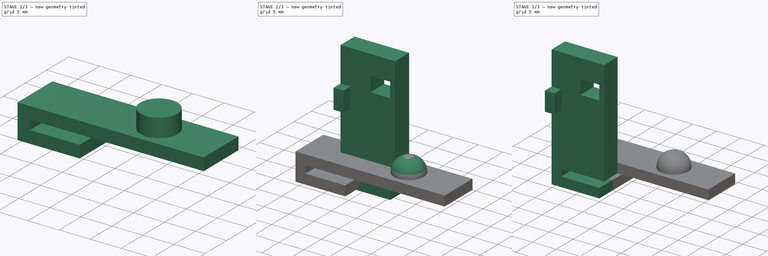
[diagram: build sequence overview — one tinted view per stage of 3, left to right]
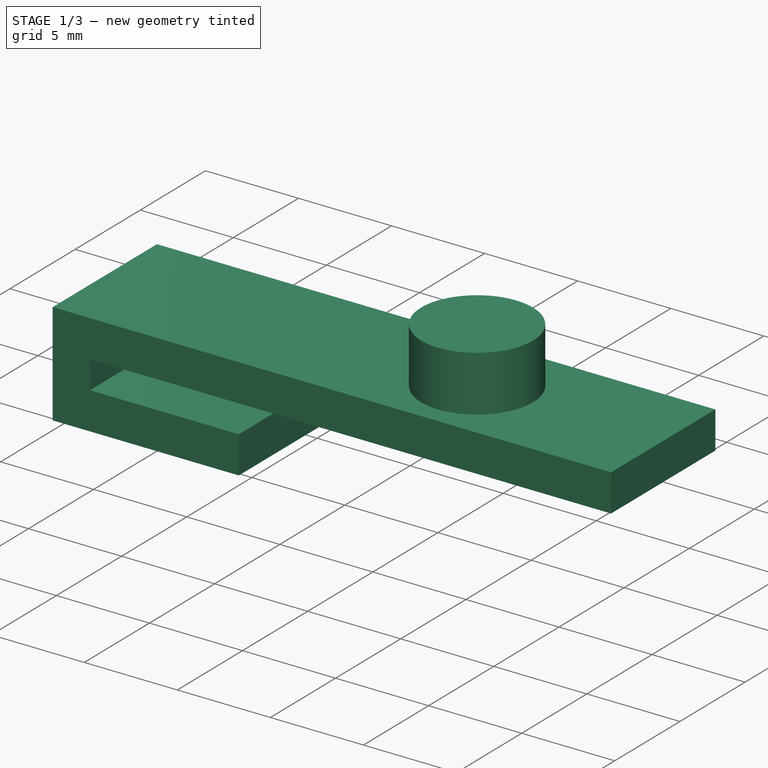
[diagram: stage 1 of 3 — iso view after this stage's code; geometry added in this stage tinted green]
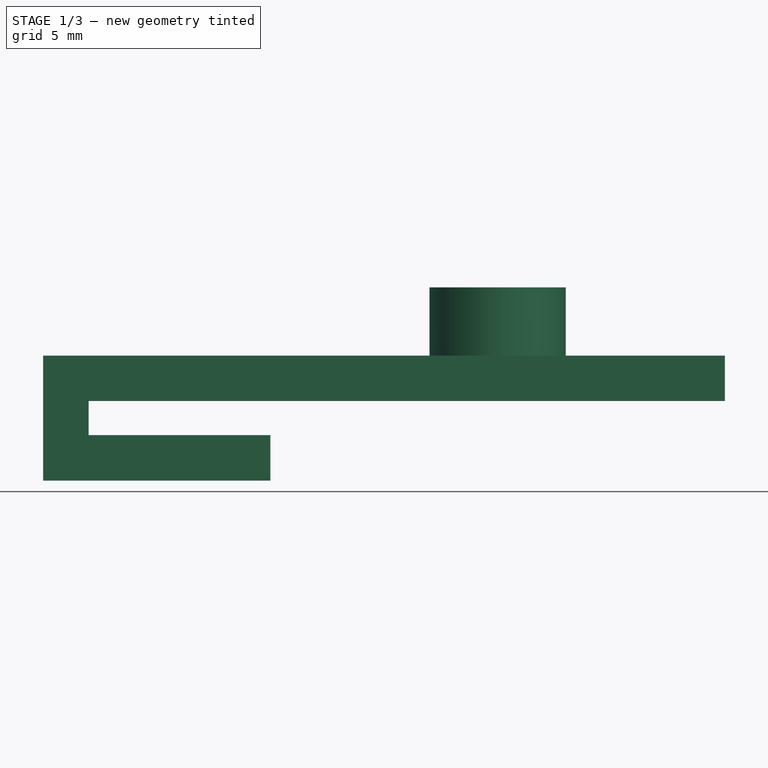
[diagram: stage 1 of 3 — front view after this stage's code; geometry added in this stage tinted green]
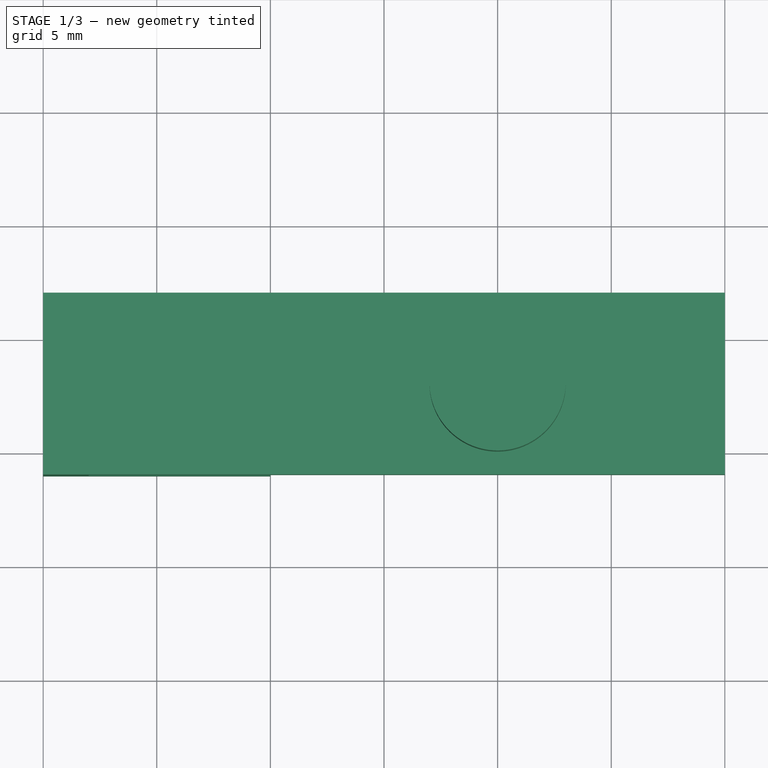
[diagram: stage 1 of 3 — top view after this stage's code; geometry added in this stage tinted green]
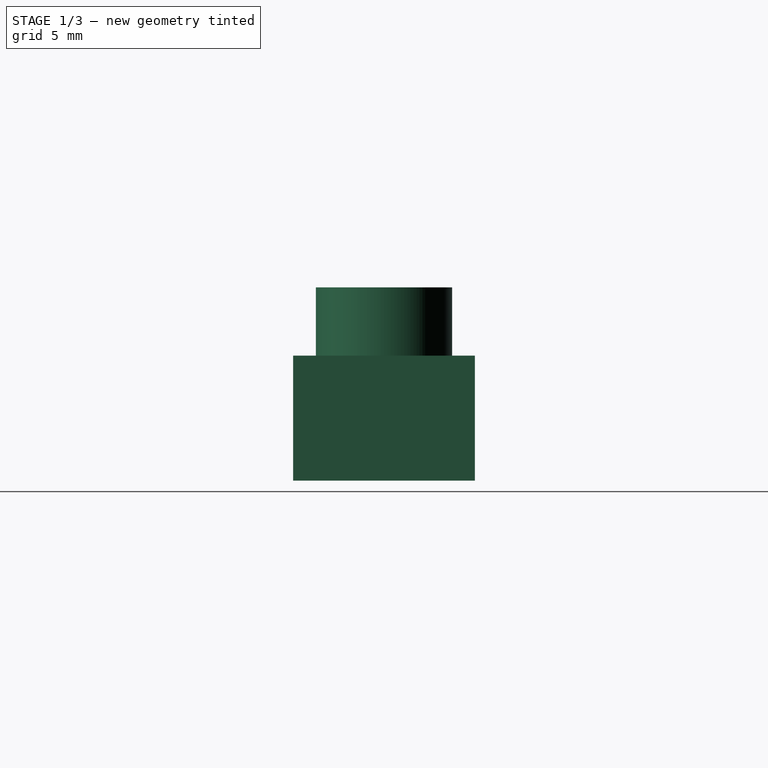
[diagram: stage 1 of 3 — right view after this stage's code; geometry added in this stage tinted green]
FCSTD DOCUMENT  (FreeCAD 0.20R29410 (Git))
Label: key_spring_mount
License: All rights reserved
LicenseURL: http://en.wikipedia.org/wiki/All_rights_reserved
objects: Sketcher::SketchObject×4, PartDesign::Pad×4, PartDesign::Body×3, PartDesign::Mirrored×1, PartDesign::Fillet×1, PartDesign::Boolean×1
note: 19 computed .brp shape members not serialized (recipe doc carries the construction recipe); baked Part::Feature solids carry a one-line shape summary decoded from their .brp

FEATURE [PartDesign::Body] Body
  Group = -> [Sketch002,Pad002,Sketch,Pad,Mirrored]
  Origin = -> Origin
  Placement = pos=(-6.25,-8,0.5) rot=(0,0,1;0rad)
  Tip = -> Mirrored
FEATURE [Sketcher::SketchObject] Sketch004
  FullyConstrained = false
  MapMode = 5
  Placement = pos=(0,2,0) rot=(1,0,0;1.5708rad)
  sketch-geometry (9):
    g0: LineSegment StartX=20 StartY=0.5 StartZ=0 EndX=20 EndY=2.5 EndZ=0
    g1: LineSegment StartX=20 StartY=2.5 StartZ=0 EndX=-10 EndY=2.5 EndZ=0
    g2: LineSegment StartX=-10 StartY=2.5 StartZ=0 EndX=-10 EndY=0.553374 EndZ=0
    g3: LineSegment StartX=-10 StartY=0.553374 StartZ=0 EndX=-10 EndY=-3 EndZ=0
    g4: LineSegment StartX=-10 StartY=-3 StartZ=0 EndX=0 EndY=-3 EndZ=0
    g5: LineSegment StartX=0 StartY=-3 StartZ=0 EndX=0 EndY=-1 EndZ=0
    g6: LineSegment StartX=0 StartY=-1 StartZ=0 EndX=-8 EndY=-1 EndZ=0
    g7: LineSegment StartX=-8 StartY=-1 StartZ=0 EndX=-8 EndY=0.5 EndZ=0
    g8: LineSegment StartX=20 StartY=0.5 StartZ=0 EndX=-8 EndY=0.5 EndZ=0
  constraints (25):
    c: Coincident(g1,g0)
    c: Vertical(g0)
    c: DistanceX(g1,g1) = 30
    c: Coincident(g8,g0)
    c: Coincident(g8,g7)
    c: Horizontal(g8)
    c: Coincident(g2,g1)
    c: Vertical(g2)
    c: Tangent(g3,g2) = -1.5708
    c: Coincident(g3,g4)
    c: Coincident(g5,g6)
    c: Coincident(g4,g5)
    c: Horizontal(g1)
    c: DistanceY(g7,g7) = 1.5
    c: Coincident(g6,g7)
    c: Horizontal(g6)
    c: DistanceY(g5,g5) = 2
    c: Horizontal(g4)
    c: Vertical(g7)
    c: DistanceY(g0,g0) = 2
    c: DistanceX(g6,g6) = 8
    c: Vertical(g5)
    c: DistanceX(g4,g4) = 10
    c: DistanceX(g1,g-1) = 10
    c: DistanceY(g-1,g1) = 2.5
FEATURE [PartDesign::Pad] Pad004
  Direction = (0,-1,2e-16)
  Length = 8
  Length2 = 100
  Placement = pos=(0,2,0) rot=(1,0,0;1.5708rad)
  Profile = -> Sketch004
  ReferenceAxis = -> Sketch004 [N_Axis]
  Type = 0
FEATURE [Sketcher::SketchObject] Sketch003
  FullyConstrained = true
  MapMode = 5
  Placement = pos=(0,2,2.5) rot=(0,0,1;3.14159rad)
  Support = -> [Pad004]
  sketch-geometry (1):
    g0: Circle CenterX=-10 CenterY=4 CenterZ=0 NormalX=0 NormalY=0 NormalZ=1 AngleXU=0 Radius=3
  constraints (3):
    c: DistanceX(g0,g-1) = 10
    c: DistanceY(g-1,g0) = 4
    c: Diameter(g0) = 6
FEATURE [PartDesign::Pad] Pad003
  BaseFeature = -> Pad004
  Direction = (0,3e-16,1)
  Length = 3
  Length2 = 10
  Placement = pos=(0,2,0) rot=(1,0,0;1.5708rad)
  Profile = -> Sketch003
  ReferenceAxis = -> Sketch003 [N_Axis]
  Type = 0
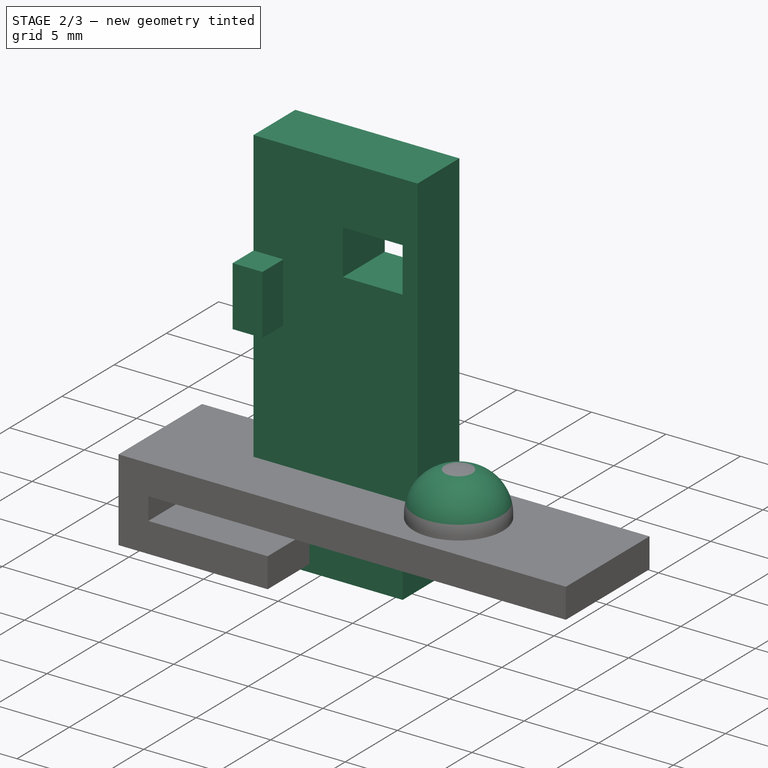
[diagram: stage 2 of 3 — iso view after this stage's code; geometry added in this stage tinted green]
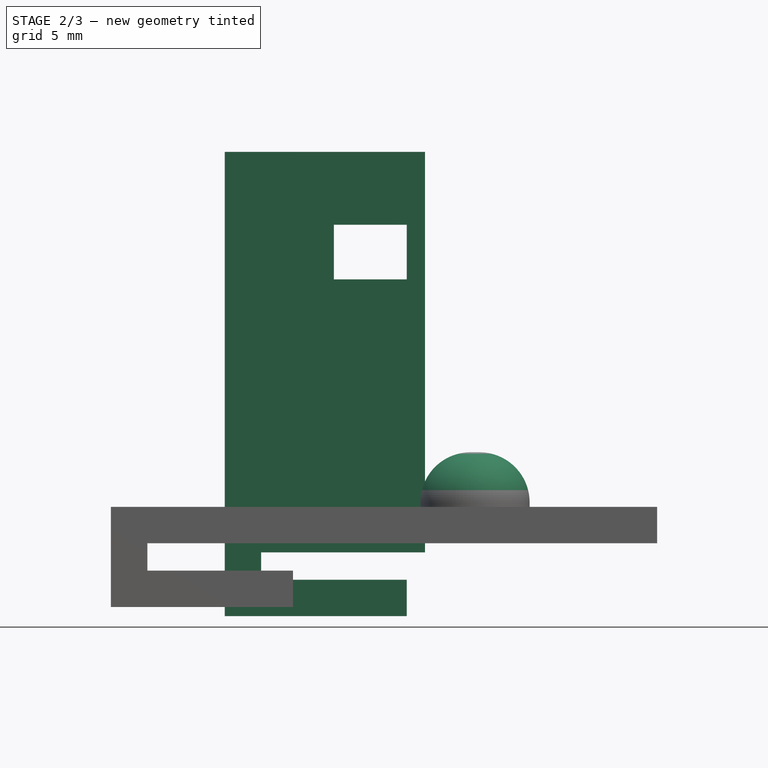
[diagram: stage 2 of 3 — front view after this stage's code; geometry added in this stage tinted green]
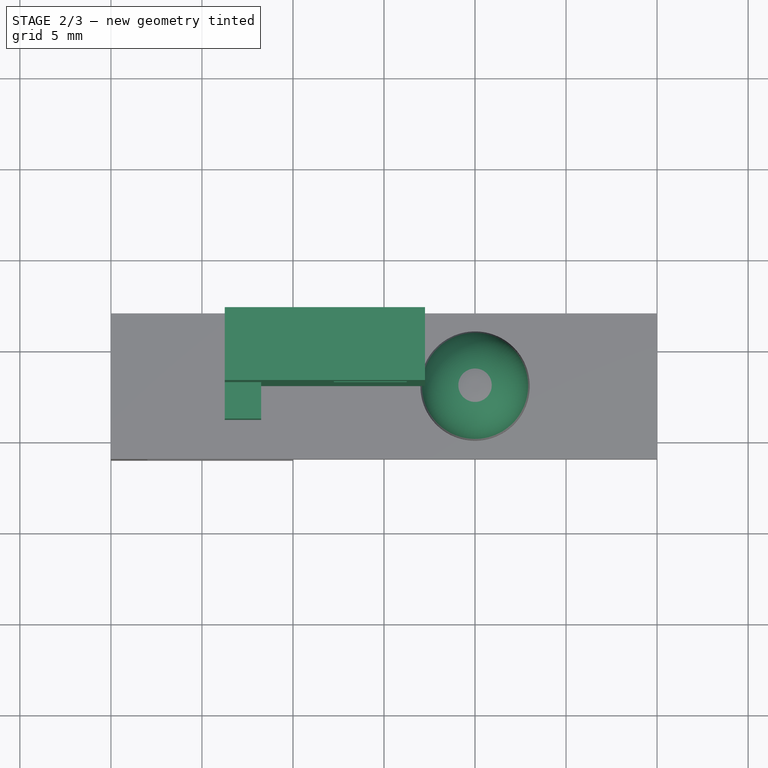
[diagram: stage 2 of 3 — top view after this stage's code; geometry added in this stage tinted green]
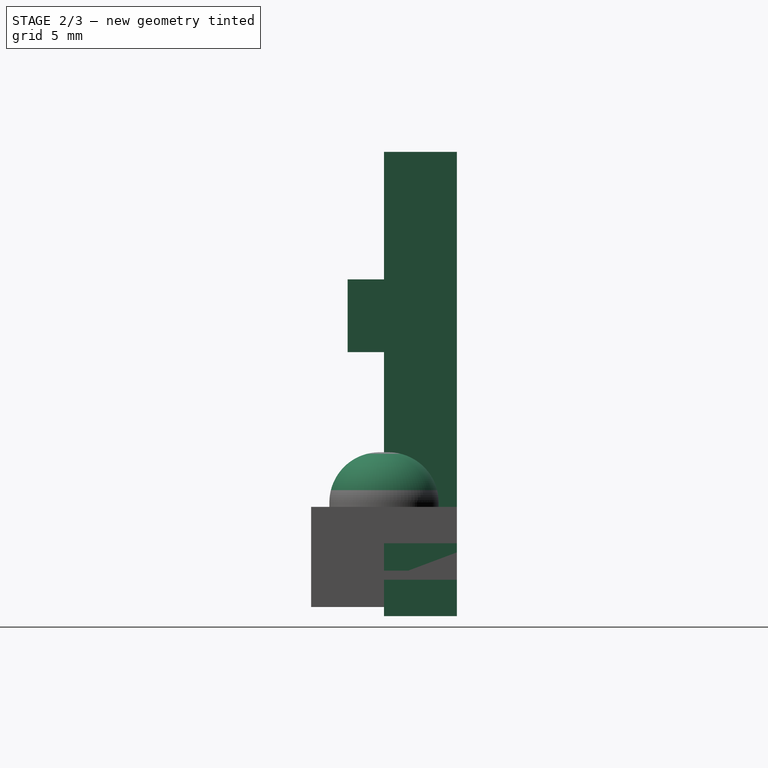
[diagram: stage 2 of 3 — right view after this stage's code; geometry added in this stage tinted green]
FEATURE [Sketcher::SketchObject] Sketch002
  FullyConstrained = true
  MapMode = 5
  Placement = pos=(0,2,0) rot=(1,0,0;1.5708rad)
  sketch-geometry (15):
    g0: LineSegment StartX=7.25 StartY=0 StartZ=0 EndX=7.25 EndY=22 EndZ=0
    g1: LineSegment StartX=7.25 StartY=22 StartZ=0 EndX=3.75 EndY=22 EndZ=0
    g2: LineSegment StartX=6.25 StartY=15 StartZ=0 EndX=2.25 EndY=15 EndZ=0
    g3: LineSegment StartX=2.25 StartY=15 StartZ=0 EndX=2.25 EndY=18 EndZ=0
    g4: LineSegment StartX=2.25 StartY=18 StartZ=0 EndX=6.25 EndY=18 EndZ=0
    g5: LineSegment StartX=2.25 StartY=22 StartZ=0 EndX=-3.75 EndY=22 EndZ=0
    g6: LineSegment StartX=-3.75 StartY=22 StartZ=0 EndX=-3.75 EndY=0 EndZ=0
    g7: LineSegment StartX=2.25 StartY=22 StartZ=0 EndX=3.75 EndY=22 EndZ=0
    g8: LineSegment StartX=6.25 StartY=18 StartZ=0 EndX=6.25 EndY=15 EndZ=0
    g9: LineSegment StartX=-3.75 StartY=0 StartZ=0 EndX=-3.75 EndY=-3.5 EndZ=0
    g10: LineSegment StartX=-3.75 StartY=-3.5 StartZ=0 EndX=6.25 EndY=-3.5 EndZ=0
    g11: LineSegment StartX=6.25 StartY=-3.5 StartZ=0 EndX=6.25 EndY=-1.5 EndZ=0
    g12: LineSegment StartX=6.25 StartY=-1.5 StartZ=0 EndX=-1.75 EndY=-1.5 EndZ=0
    g13: LineSegment StartX=-1.75 StartY=-1.5 StartZ=0 EndX=-1.75 EndY=0 EndZ=0
    g14: LineSegment StartX=-1.75 StartY=0 StartZ=0 EndX=7.25 EndY=0 EndZ=0
  constraints (45):
    c: Vertical(g0)
    c: Coincident(g0,g1)
    c: Horizontal(g1)
    c: Horizontal(g2)
    c: Coincident(g2,g3)
    c: Vertical(g3)
    c: Coincident(g3,g4)
    c: Horizontal(g4)
    c: Horizontal(g5)
    c: Coincident(g5,g6)
    c: PointOnObject(g6,g-1)
    c: Vertical(g6)
    c: DistanceY(g3,g3) = 3
    c: DistanceY(g-1,g2) = 15
    c: DistanceY(g0,g0) = 22
    c: DistanceY(g6,g6) = 22
    c: DistanceX(g4,g4) = 4
    c: DistanceX(g5,g1) = 1.5
    c: DistanceX(g3,g-1) = -2.25
    c: DistanceX(g5,g5) = 6
    c: Coincident(g7,g5)
    c: Coincident(g7,g1)
    c: Equal(g4,g2)
    c: Coincident(g8,g4)
    c: Coincident(g8,g2)
    c: DistanceX(g5,g0) = 11
    c: DistanceX(g5) = -3.75
    c: Coincident(g6,g9)
    c: Vertical(g9)
    c: Coincident(g9,g10)
    c: Horizontal(g10)
    c: Coincident(g10,g11)
    c: Vertical(g11)
    c: Coincident(g11,g12)
    c: Horizontal(g12)
    c: Coincident(g12,g13)
    c: PointOnObject(g13,g-1)
    c: Vertical(g13)
    c: Coincident(g13,g14)
    c: Coincident(g14,g0)
    c: Horizontal(g14)
    c: DistanceY(g13,g13) = 1.5
    c: DistanceY(g11,g11) = 2
    c: DistanceX(g12,g-1) = 1.75
    c: DistanceX(g10,g10) = 10
FEATURE [PartDesign::Pad] Pad002
  Direction = (0,-1,2e-16)
  Length = 4
  Length2 = 100
  Placement = pos=(0,2,0) rot=(1,0,0;1.5708rad)
  Profile = -> Sketch002
  Type = 0
FEATURE [Sketcher::SketchObject] Sketch
  FullyConstrained = true
  MapMode = 2
  Placement = pos=(0,2,0) rot=(1,0,0;1.5708rad)
  Support = -> [Pad002]
  sketch-geometry (4):
    g0: LineSegment StartX=-1.75 StartY=15 StartZ=0 EndX=-3.75 EndY=15 EndZ=0
    g1: LineSegment StartX=-3.75 StartY=15 StartZ=0 EndX=-3.75 EndY=11 EndZ=0
    g2: LineSegment StartX=-3.75 StartY=11 StartZ=0 EndX=-1.75 EndY=11 EndZ=0
    g3: LineSegment StartX=-1.75 StartY=11 StartZ=0 EndX=-1.75 EndY=15 EndZ=0
  constraints (12):
    c: Coincident(g0,g1)
    c: Coincident(g1,g2)
    c: Coincident(g2,g3)
    c: Coincident(g3,g0)
    c: Horizontal(g0)
    c: Horizontal(g2)
    c: Vertical(g1)
    c: Vertical(g3)
    c: DistanceX(g0,g0) = 2
    c: DistanceY(g3,g3) = 4
    c: DistanceY(g-1,g1) = 11
    c: DistanceX(g1,g-1) = 3.75
FEATURE [PartDesign::Pad] Pad
  BaseFeature = -> Pad002
  Direction = (0,-1,2e-16)
  Length = 6
  Length2 = 10
  Placement = pos=(0,2,0) rot=(1,0,0;1.5708rad)
  Profile = -> Sketch
  ReferenceAxis = -> Sketch [N_Axis]
  Type = 0
FEATURE [PartDesign::Fillet] Fillet
  Base = -> Pad003 [Edge27]
  BaseFeature = -> Pad003
  Placement = pos=(0,2,0) rot=(1,0,0;1.5708rad)
  Radius = 2.75
  SupportTransform = false
  UseAllEdges = false
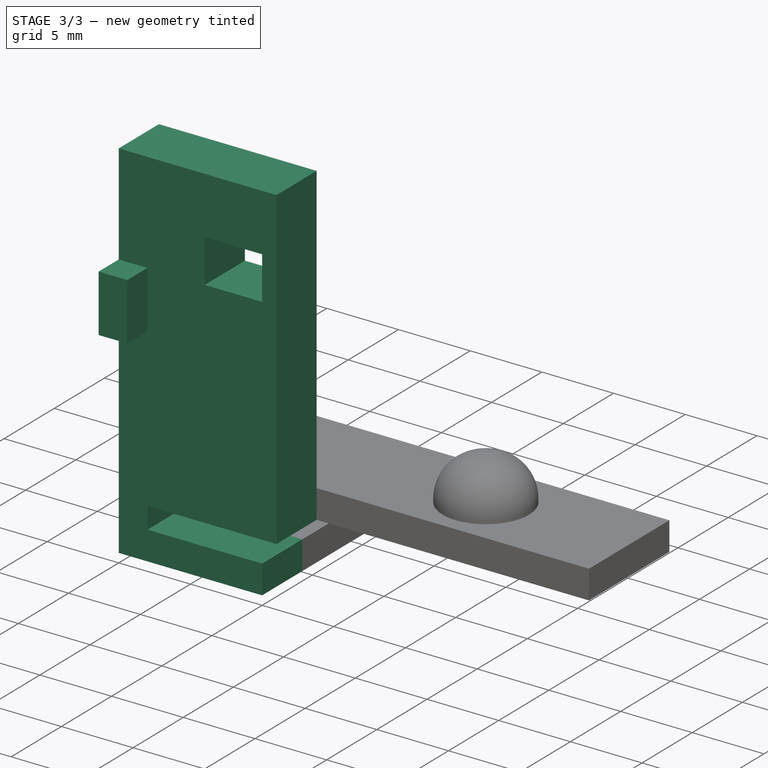
[diagram: stage 3 of 3 — iso view after this stage's code; geometry added in this stage tinted green]
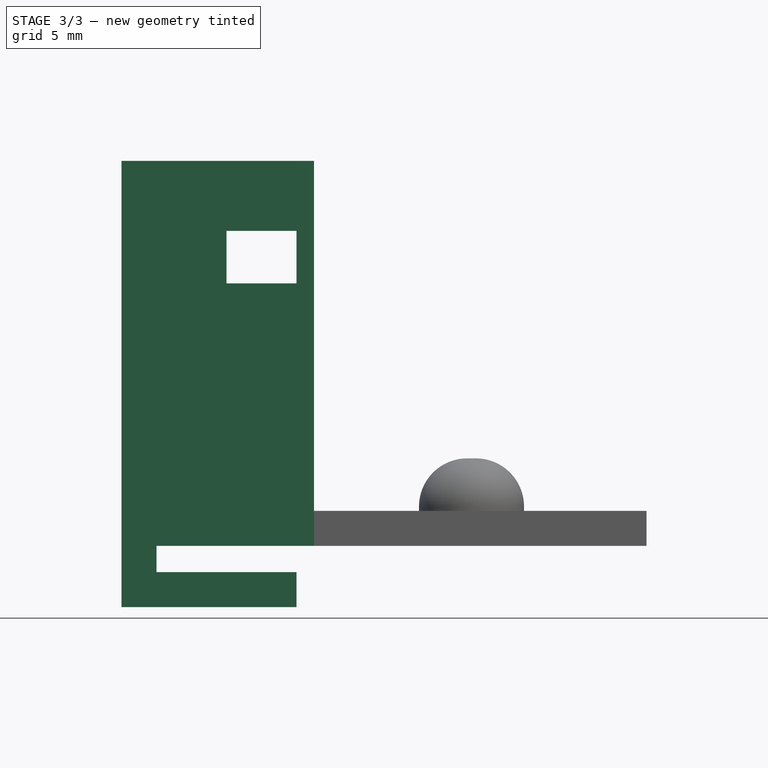
[diagram: stage 3 of 3 — front view after this stage's code; geometry added in this stage tinted green]
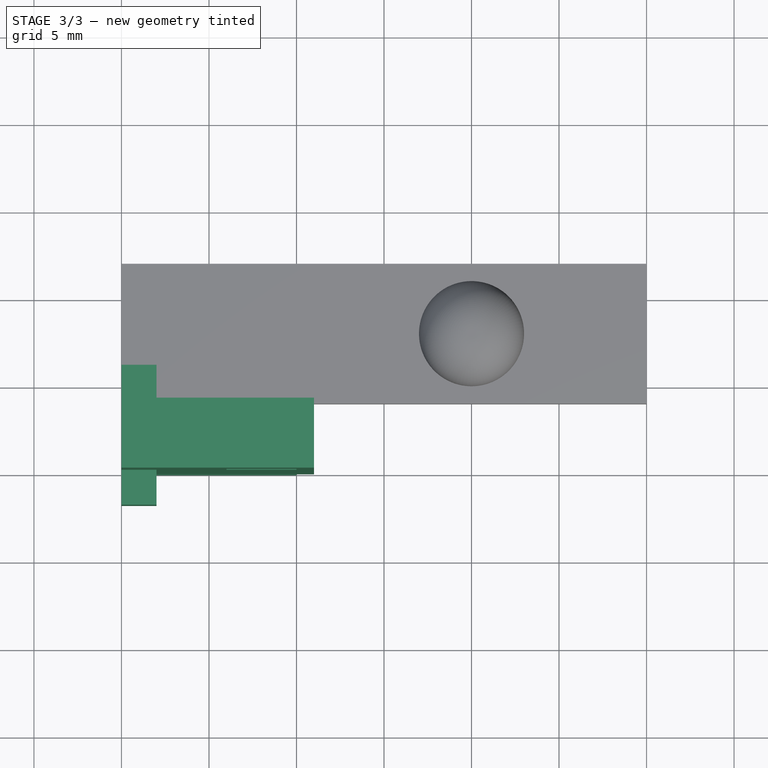
[diagram: stage 3 of 3 — top view after this stage's code; geometry added in this stage tinted green]
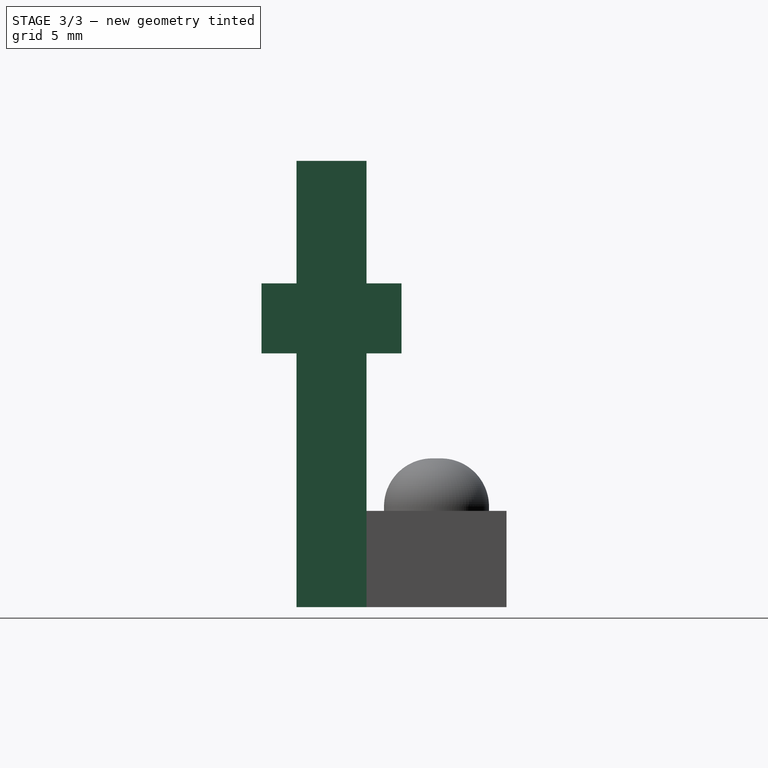
[diagram: stage 3 of 3 — right view after this stage's code; geometry added in this stage tinted green]
FEATURE [PartDesign::Mirrored] Mirrored
  BaseFeature = -> Pad
  MirrorPlane = -> XZ_Plane
  Originals = -> [Pad]
  Placement = pos=(0,2,0) rot=(1,0,0;1.5708rad)
FEATURE [PartDesign::Body] Body001
  Group = -> [Sketch004,Pad004,Sketch003,Pad003,Fillet]
  Origin = -> Origin001
  Tip = -> Fillet
FEATURE [PartDesign::Boolean] Boolean
  Group = -> [Body,Body001]
  Type = 0
FEATURE [PartDesign::Body] Body002
  Group = -> [Boolean]
  Origin = -> Origin002
  Tip = -> Boolean
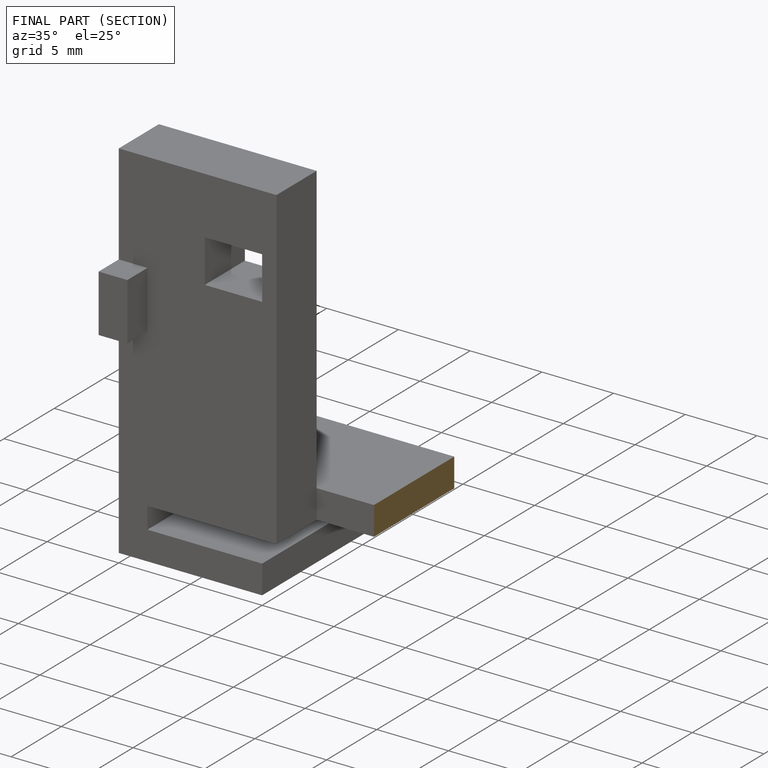
[diagram: finished part — half-section view (interior)]
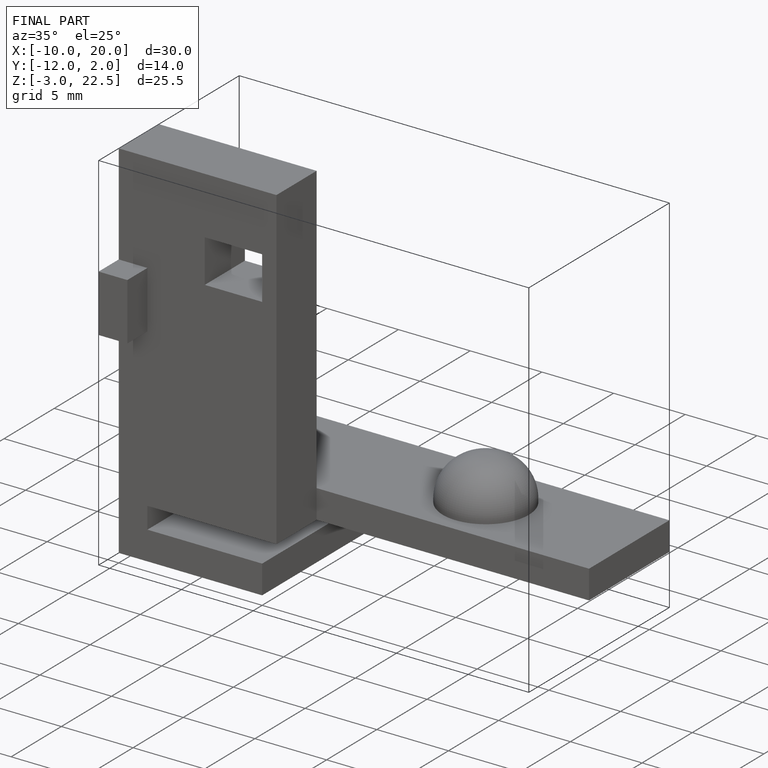
[diagram: finished part — iso view with bounding-box wireframe]
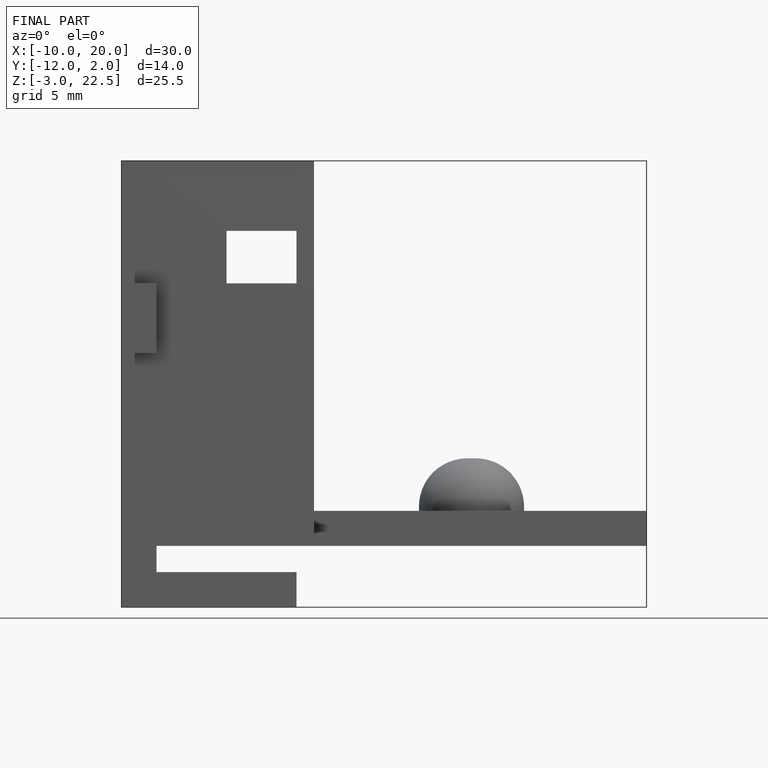
[diagram: finished part — front view with bounding-box wireframe]
